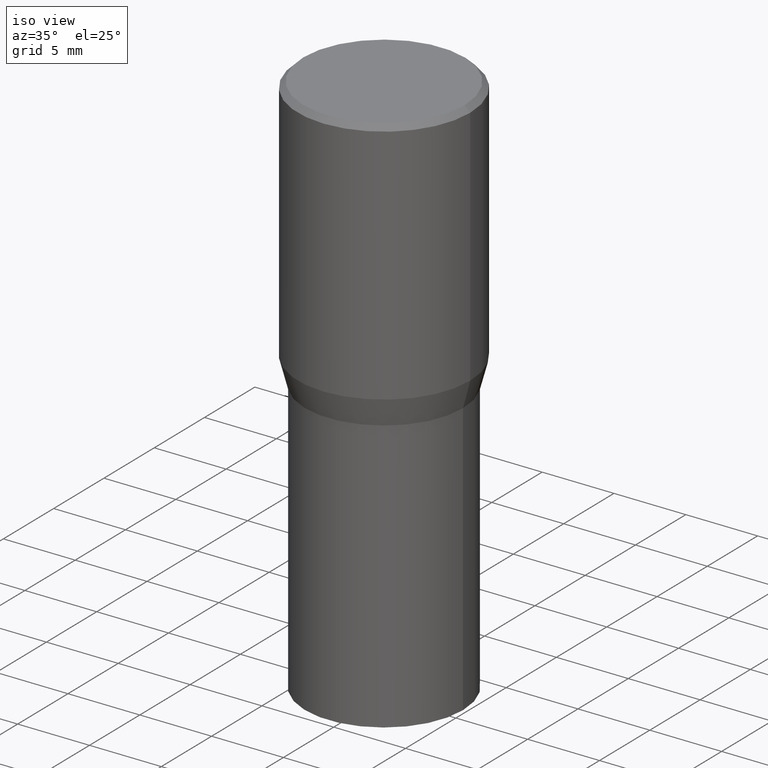
[diagram: clean part render]
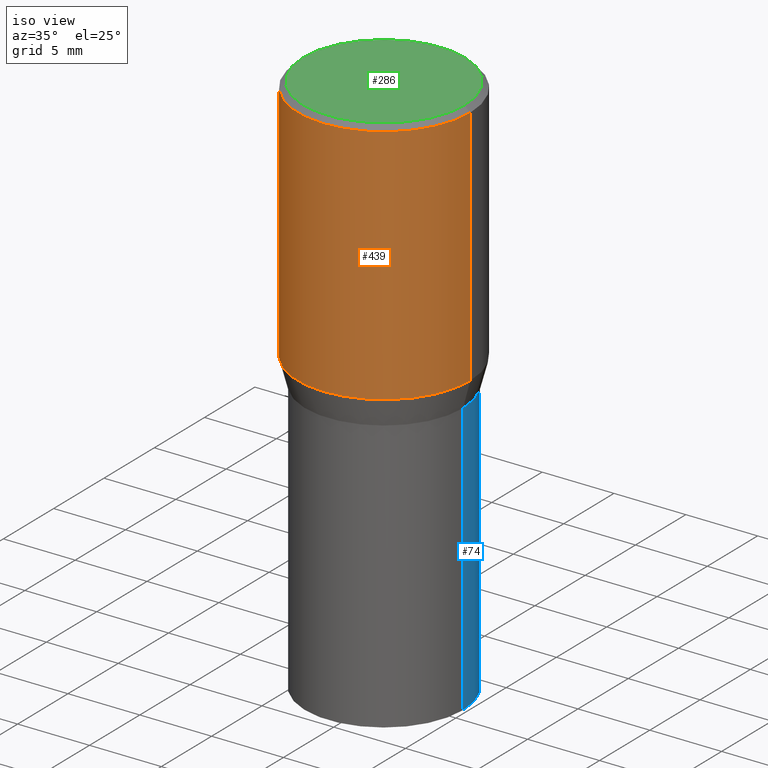
[diagram: same view with three faces highlighted in distinct colors, each labeled with its STEP entity id]
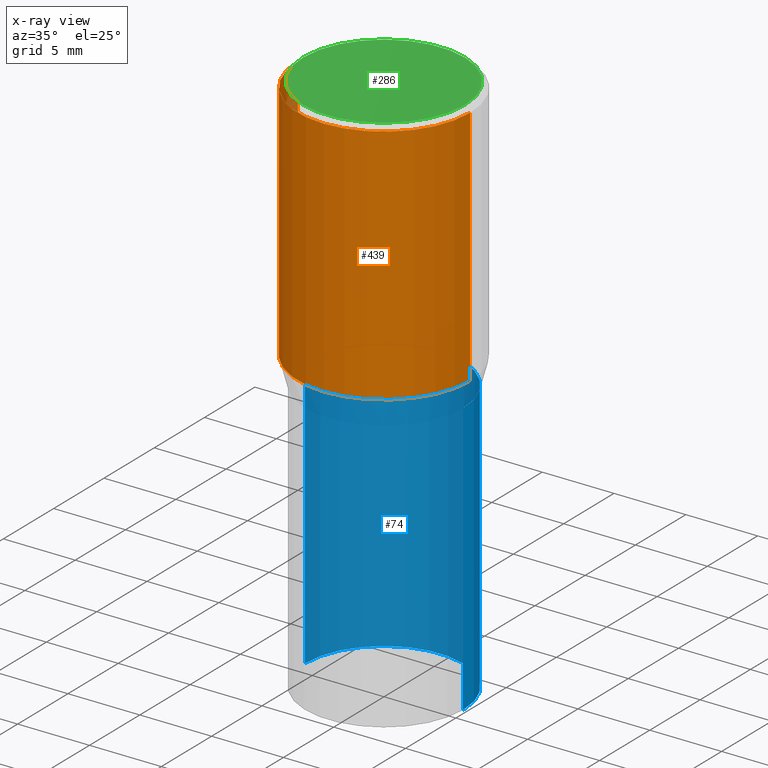
[diagram: x-ray of the same camera — body ghosted, the three highlighted faces saturated]
A machine part, iso view with three faces highlighted in distinct colors.
The next image is the same camera in x-ray (body ghosted, the three faces saturated) — at least one of them is partly hidden behind the body in this view.
Their STEP definitions:

[orange] entity #439 — the highlighted cylindrical surface (partial cylindrical patch) has radius 5.9995 mm, axis along (-0, 0, 1).
#6 = DIRECTION ( 'NONE',  ( -2.445468806185136877E-29, 3.491481338843145188E-15, 1.000000000000000000 ) ) ;
#45 = ORIENTED_EDGE ( 'NONE', *, *, #351, .T. ) ;
#58 = DIRECTION ( 'NONE',  ( -2.445468806185136597E-29, 3.491481338843145583E-15, 1.000000000000000000 ) ) ;
#72 = DIRECTION ( 'NONE',  ( 1.000000000000000000, -6.982962677686266711E-15, 0.000000000000000000 ) ) ;
#77 = AXIS2_PLACEMENT_3D ( 'NONE', #453, #176, #72 ) ;
#90 = FACE_OUTER_BOUND ( 'NONE', #365, .T. ) ;
#113 = CARTESIAN_POINT ( 'NONE',  ( -0.2361999999999999933, 4.673423884151294145E-16, -0.01499999999999999944 ) ) ;
#115 = ORIENTED_EDGE ( 'NONE', *, *, #142, .F. ) ;
#129 = CIRCLE ( 'NONE', #77, 0.2361999999999999933 ) ;
#139 = ORIENTED_EDGE ( 'NONE', *, *, #411, .F. ) ;
#142 = EDGE_CURVE ( 'NONE', #159, #441, #129, .T. ) ;
#143 = CARTESIAN_POINT ( 'NONE',  ( 1.659654580432621677E-29, -2.369546886817807077E-15, -0.6786652016312719748 ) ) ;
#159 = VERTEX_POINT ( 'NONE', #113 ) ;
#166 = EDGE_CURVE ( 'NONE', #448, #304, #183, .T. ) ;
#176 = DIRECTION ( 'NONE',  ( -2.445468806185136597E-29, 3.491481338843145583E-15, 1.000000000000000000 ) ) ;
#183 = CIRCLE ( 'NONE', #325, 0.2361999999999999933 ) ;
#194 = LINE ( 'NONE', #338, #217 ) ;
#198 = CARTESIAN_POINT ( 'NONE',  ( 0.000000000000000000, 0.000000000000000000, 0.000000000000000000 ) ) ;
#202 = AXIS2_PLACEMENT_3D ( 'NONE', #198, #58, #373 ) ;
#217 = VECTOR ( 'NONE', #6, 39.37007874015748143 ) ;
#218 = DIRECTION ( 'NONE',  ( 1.000000000000000000, -6.982962677686266711E-15, 0.000000000000000000 ) ) ;
#289 = ORIENTED_EDGE ( 'NONE', *, *, #166, .T. ) ;
#290 = DIRECTION ( 'NONE',  ( -2.445468806185136597E-29, 3.491481338843145583E-15, 1.000000000000000000 ) ) ;
#301 = DIRECTION ( 'NONE',  ( -2.445468806185136877E-29, 3.491481338843145188E-15, 1.000000000000000000 ) ) ;
#304 = VERTEX_POINT ( 'NONE', #429 ) ;
#312 = VECTOR ( 'NONE', #301, 39.37007874015748143 ) ;
#320 = CARTESIAN_POINT ( 'NONE',  ( 0.2361999999999999933, -1.701748004552143407E-15, -0.01499999999999999944 ) ) ;
#325 = AXIS2_PLACEMENT_3D ( 'NONE', #143, #290, #218 ) ;
#338 = CARTESIAN_POINT ( 'NONE',  ( -0.2361999999999999933, 1.678301941865356591E-15, -1.161852468318208757E-29 ) ) ;
#351 = EDGE_CURVE ( 'NONE', #304, #441, #362, .T. ) ;
#362 = LINE ( 'NONE', #463, #312 ) ;
#365 = EDGE_LOOP ( 'NONE', ( #139, #289, #45, #115 ) ) ;
#370 = CARTESIAN_POINT ( 'NONE',  ( -0.2361999999999999933, -6.912449449524502887E-16, -0.6786652016312719748 ) ) ;
#373 = DIRECTION ( 'NONE',  ( 1.000000000000000000, -6.982962677686266711E-15, 4.876176775795936353E-29 ) ) ;
#411 = EDGE_CURVE ( 'NONE', #448, #159, #194, .T. ) ;
#412 = CYLINDRICAL_SURFACE ( 'NONE', #202, 0.2361999999999999933 ) ;
#429 = CARTESIAN_POINT ( 'NONE',  ( 0.2361999999999999933, -4.018922671287303208E-15, -0.6786652016312719748 ) ) ;
#439 = ADVANCED_FACE ( 'NONE', ( #90 ), #412, .T. ) ;
#441 = VERTEX_POINT ( 'NONE', #320 ) ;
#448 = VERTEX_POINT ( 'NONE', #370 ) ;
#453 = CARTESIAN_POINT ( 'NONE',  ( 3.668203209277705088E-31, -5.237222008264718399E-17, -0.01499999999999999944 ) ) ;
#463 = CARTESIAN_POINT ( 'NONE',  ( 0.2361999999999999933, -1.649375784469496131E-15, 1.151752954443000088E-29 ) ) ;

[blue] entity #74 — the highlighted cylindrical surface (partial cylindrical patch) has radius 5.5004 mm, axis along (-0, 0, 1).
#19 = DIRECTION ( 'NONE',  ( 1.000000000000000000, -6.982962677686266711E-15, 4.876176775795935793E-29 ) ) ;
#34 = CIRCLE ( 'NONE', #297, 0.2165500000000000203 ) ;
#53 = FACE_OUTER_BOUND ( 'NONE', #270, .T. ) ;
#64 = DIRECTION ( 'NONE',  ( 1.000000000000000000, -6.982962677686266711E-15, 0.000000000000000000 ) ) ;
#74 = ADVANCED_FACE ( 'NONE', ( #53 ), #203, .T. ) ;
#80 = CARTESIAN_POINT ( 'NONE',  ( 3.668203209277704895E-29, -5.237222008264718177E-15, -1.500000000000000222 ) ) ;
#87 = ORIENTED_EDGE ( 'NONE', *, *, #452, .T. ) ;
#89 = EDGE_CURVE ( 'NONE', #438, #244, #282, .T. ) ;
#98 = DIRECTION ( 'NONE',  ( -2.445468806185136877E-29, 3.491481338843145188E-15, 1.000000000000000000 ) ) ;
#156 = ORIENTED_EDGE ( 'NONE', *, *, #89, .F. ) ;
#160 = AXIS2_PLACEMENT_3D ( 'NONE', #424, #295, #64 ) ;
#163 = ORIENTED_EDGE ( 'NONE', *, *, #430, .F. ) ;
#169 = CARTESIAN_POINT ( 'NONE',  ( -0.2165500000000000203, -2.392727693248884740E-15, -1.500000000000000222 ) ) ;
#173 = CARTESIAN_POINT ( 'NONE',  ( 0.2165500000000000203, -4.137754534663007109E-15, -0.7520000000000001128 ) ) ;
#178 = CARTESIAN_POINT ( 'NONE',  ( -0.2165500000000000203, -2.392727693248884740E-15, -0.7520000000000001128 ) ) ;
#189 = ORIENTED_EDGE ( 'NONE', *, *, #395, .T. ) ;
#203 = CYLINDRICAL_SURFACE ( 'NONE', #264, 0.2165500000000000203 ) ;
#228 = DIRECTION ( 'NONE',  ( -2.445468806185136597E-29, 3.491481338843145583E-15, 1.000000000000000000 ) ) ;
#230 = CARTESIAN_POINT ( 'NONE',  ( 0.2165500000000000203, -6.749382576117678999E-15, -1.500000000000000222 ) ) ;
#240 = CARTESIAN_POINT ( 'NONE',  ( 0.2165500000000000203, -1.512160567852961217E-15, 1.055936080798610036E-29 ) ) ;
#244 = VERTEX_POINT ( 'NONE', #178 ) ;
#264 = AXIS2_PLACEMENT_3D ( 'NONE', #348, #316, #19 ) ;
#270 = EDGE_LOOP ( 'NONE', ( #189, #87, #156, #163 ) ) ;
#274 = CARTESIAN_POINT ( 'NONE',  ( -0.2165500000000000203, 1.538680294288497096E-15, -1.065195393794699923E-29 ) ) ;
#282 = CIRCLE ( 'NONE', #160, 0.2165500000000000203 ) ;
#295 = DIRECTION ( 'NONE',  ( -2.445468806185136597E-29, 3.491481338843145583E-15, 1.000000000000000000 ) ) ;
#297 = AXIS2_PLACEMENT_3D ( 'NONE', #80, #228, #364 ) ;
#316 = DIRECTION ( 'NONE',  ( -2.445468806185136597E-29, 3.491481338843145583E-15, 1.000000000000000000 ) ) ;
#335 = VERTEX_POINT ( 'NONE', #230 ) ;
#348 = CARTESIAN_POINT ( 'NONE',  ( 0.000000000000000000, 0.000000000000000000, 0.000000000000000000 ) ) ;
#364 = DIRECTION ( 'NONE',  ( 1.000000000000000000, -6.982962677686264344E-15, 0.000000000000000000 ) ) ;
#375 = LINE ( 'NONE', #274, #406 ) ;
#384 = VECTOR ( 'NONE', #417, 39.37007874015748143 ) ;
#395 = EDGE_CURVE ( 'NONE', #335, #443, #34, .T. ) ;
#402 = LINE ( 'NONE', #240, #384 ) ;
#406 = VECTOR ( 'NONE', #98, 39.37007874015748143 ) ;
#417 = DIRECTION ( 'NONE',  ( -2.445468806185136877E-29, 3.491481338843145188E-15, 1.000000000000000000 ) ) ;
#424 = CARTESIAN_POINT ( 'NONE',  ( 1.838992542251222813E-29, -2.625593966810045497E-15, -0.7520000000000001128 ) ) ;
#430 = EDGE_CURVE ( 'NONE', #335, #438, #402, .T. ) ;
#438 = VERTEX_POINT ( 'NONE', #173 ) ;
#443 = VERTEX_POINT ( 'NONE', #169 ) ;
#452 = EDGE_CURVE ( 'NONE', #443, #244, #375, .T. ) ;

[green] entity #286 — the highlighted planar face has unit normal (0, -0, -1).
#23 = DIRECTION ( 'NONE',  ( -2.445468806185136597E-29, 3.491481338843145583E-15, 1.000000000000000000 ) ) ;
#30 = CARTESIAN_POINT ( 'NONE',  ( 1.544631344304202170E-15, 0.2212000000000000077, -7.488084343291421542E-16 ) ) ;
#33 = AXIS2_PLACEMENT_3D ( 'NONE', #400, #235, #271 ) ;
#35 = DIRECTION ( 'NONE',  ( 2.438088387897960049E-29, -3.491481338843145188E-15, -1.000000000000000000 ) ) ;
#59 = VERTEX_POINT ( 'NONE', #100 ) ;
#79 = EDGE_LOOP ( 'NONE', ( #367, #413 ) ) ;
#100 = CARTESIAN_POINT ( 'NONE',  ( -0.2212000000000000077, 1.570817454345525709E-15, 4.701447564591265970E-17 ) ) ;
#155 = EDGE_CURVE ( 'NONE', #59, #241, #273, .T. ) ;
#162 = DIRECTION ( 'NONE',  ( -1.000000000000000000, 6.982962677686265922E-15, -4.876176775795935793E-29 ) ) ;
#235 = DIRECTION ( 'NONE',  ( -2.445468806185136597E-29, 3.491481338843145583E-15, 1.000000000000000000 ) ) ;
#241 = VERTEX_POINT ( 'NONE', #353 ) ;
#271 = DIRECTION ( 'NONE',  ( 1.000000000000000000, -6.982962677686267499E-15, 4.877828720335458505E-29 ) ) ;
#273 = CIRCLE ( 'NONE', #342, 0.2212000000000000077 ) ;
#286 = ADVANCED_FACE ( 'NONE', ( #401 ), #462, .F. ) ;
#292 = CARTESIAN_POINT ( 'NONE',  ( -1.149724336312568549E-45, 1.641501643732376111E-31, 4.701447564592355584E-17 ) ) ;
#342 = AXIS2_PLACEMENT_3D ( 'NONE', #292, #23, #428 ) ;
#346 = EDGE_CURVE ( 'NONE', #241, #59, #405, .T. ) ;
#353 = CARTESIAN_POINT ( 'NONE',  ( 0.2212000000000000077, -1.595182002131672613E-15, 4.701447564593453210E-17 ) ) ;
#367 = ORIENTED_EDGE ( 'NONE', *, *, #155, .T. ) ;
#400 = CARTESIAN_POINT ( 'NONE',  ( -1.149724336312568549E-45, 1.641501643732376111E-31, 4.701447564592355584E-17 ) ) ;
#401 = FACE_OUTER_BOUND ( 'NONE', #79, .T. ) ;
#405 = CIRCLE ( 'NONE', #33, 0.2212000000000000077 ) ;
#413 = ORIENTED_EDGE ( 'NONE', *, *, #346, .T. ) ;
#428 = DIRECTION ( 'NONE',  ( 1.000000000000000000, -6.982962677686267499E-15, 4.877828720335458505E-29 ) ) ;
#444 = AXIS2_PLACEMENT_3D ( 'NONE', #30, #35, #162 ) ;
#462 = PLANE ( 'NONE',  #444 ) ;